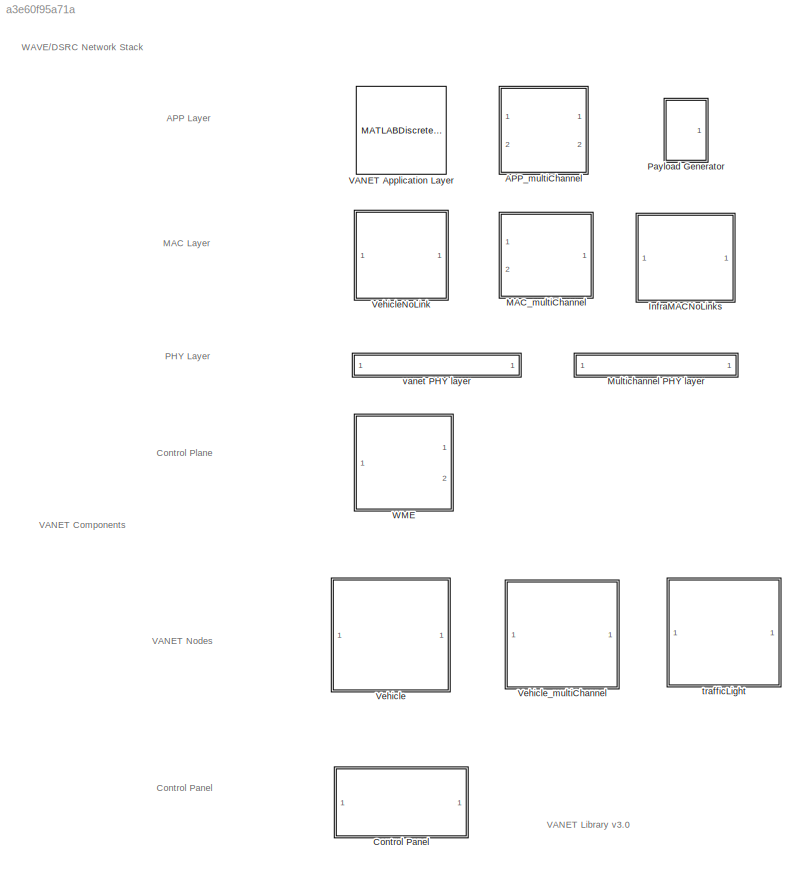
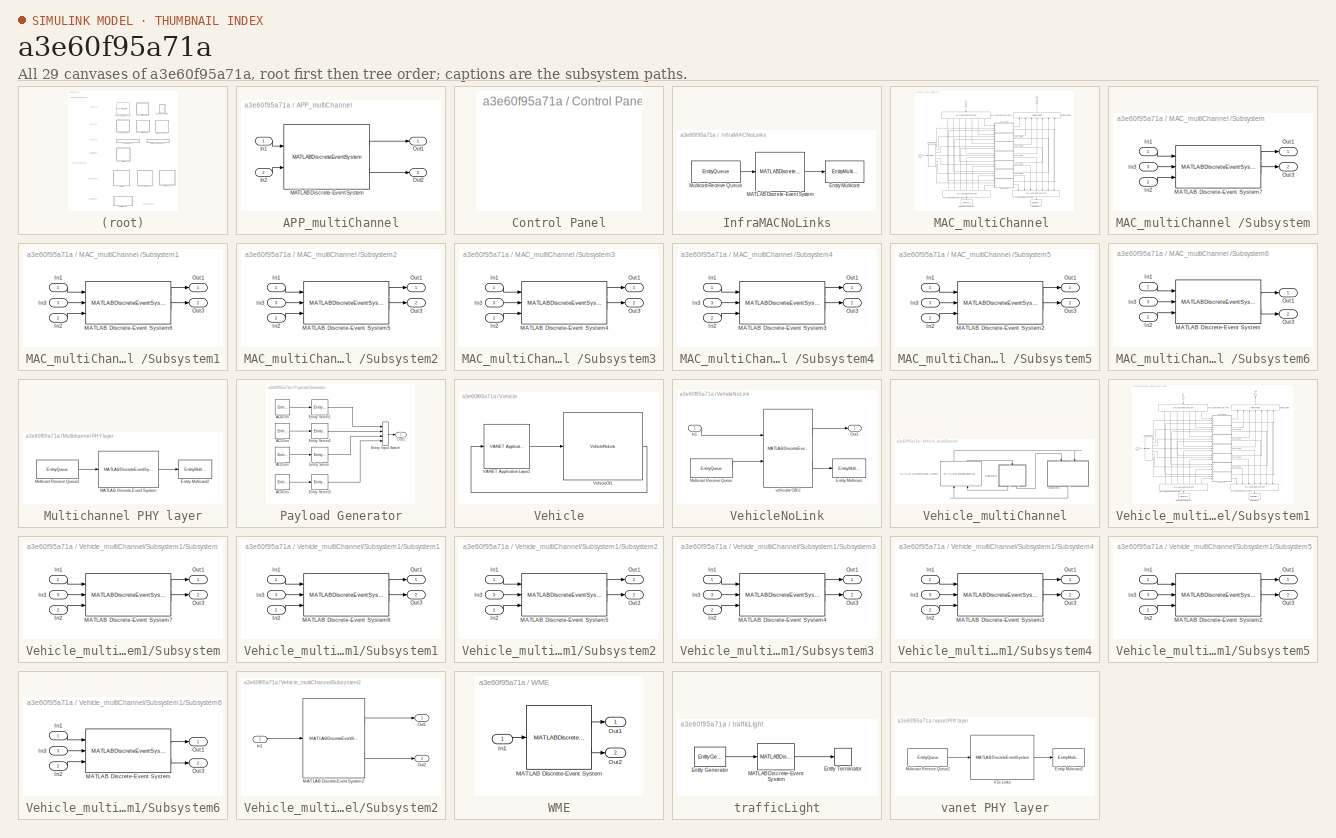
[diagram: thumbnail index - all 29 canvases of the model, root first then tree order]
MODEL slx_a3e60f95a71a
KIND library
CONFIG AbsTol = auto
CONFIG EnableMultiTasking = off
CONFIG FixedStep = auto
CONFIG MaxStep = auto
CONFIG MinStep = auto
CONFIG PreLoadFcn = vanet_init();
CONFIG RelTol = 1e-3
CONFIG SampleTimeConstraint = Unconstrained
CONFIG Solver = VariableStepAuto
CONFIG SolverName = VariableStepAuto
CONFIG StartFcn = vanet_init();
CONFIG StartTime = 0.0
CONFIG StopTime = 10.0
BLOCK [SubSystem] APP_multiChannel
  Ports = [2, 2]
  RequestExecContextInheritance = off
BLOCK [Inport] APP_multiChannel/In1
  IconDisplay = Port number
BLOCK [Inport] APP_multiChannel/In2
  IconDisplay = Port number
  Port = 2
BLOCK [MATLABDiscreteEventSystem] APP_multiChannel/MATLAB Discrete-Event System
  InputPortMessageModes = m,m
  MaskDisplay = disp('des_APP_mulChan_OBU');
  MaskType = des_APP_mulChan_OBU
  OutputPortMessageModes = m,m
  Ports = [2, 2]
  SimulateUsing = Code generation
  System = des_APP_mulChan_OBU
  initAcc = initAcc
  initLane = initLane
  initVelocity = initVelocity
  startPositionX = startPositionX
  startPositionY = startPositionY
  svcRole = 0
  vehicleID = vehicleID
BLOCK [Outport] APP_multiChannel/Out1
  IconDisplay = Port number
BLOCK [Outport] APP_multiChannel/Out2
  IconDisplay = Port number
  Port = 2
BLOCK [SubSystem] Control Panel
  Ports = []
  RequestExecContextInheritance = off
  StartFcn = fcn_initInfo('init');
BLOCK [SubSystem] InfraMACNoLinks
  Ports = []
  RequestExecContextInheritance = off
BLOCK [EntityMulticast] InfraMACNoLinks/Entity Multicast
  InputPortMessageModes = m
  MulticastTag = toPhy
BLOCK [MATLABDiscreteEventSystem] InfraMACNoLinks/MATLAB Discrete-Event System
  AIFSN_AC0 = 9
  AIFSN_AC1 = 6
  AIFSN_AC2 = 3
  AIFSN_AC3 = 2
  BSSID = 00
  InputPortMessageModes = m
  MaskDisplay = disp('des_MAC_RSU');
  MaskType = des_MAC_RSU
  OutputPortMessageModes = m
  Ports = [1, 1]
  Retry_MAX = 3
  SimulateUsing = Code generation
  System = des_MAC_RSU
  aCWmax = 1023
  aCWmin = 15
  propTime = 1
  rxAddr = 0
  sifs = 0.000032
  slottime = 0.000013
BLOCK [EntityQueue] InfraMACNoLinks/Multicast Receive Queue
  Capacity = inf
  EntityArrivalSource = Multicast
  MulticastTag = fromPhy
  OutputPortMap = o5
  OutputPortMessageModes = m
  Ports = [0, 1]
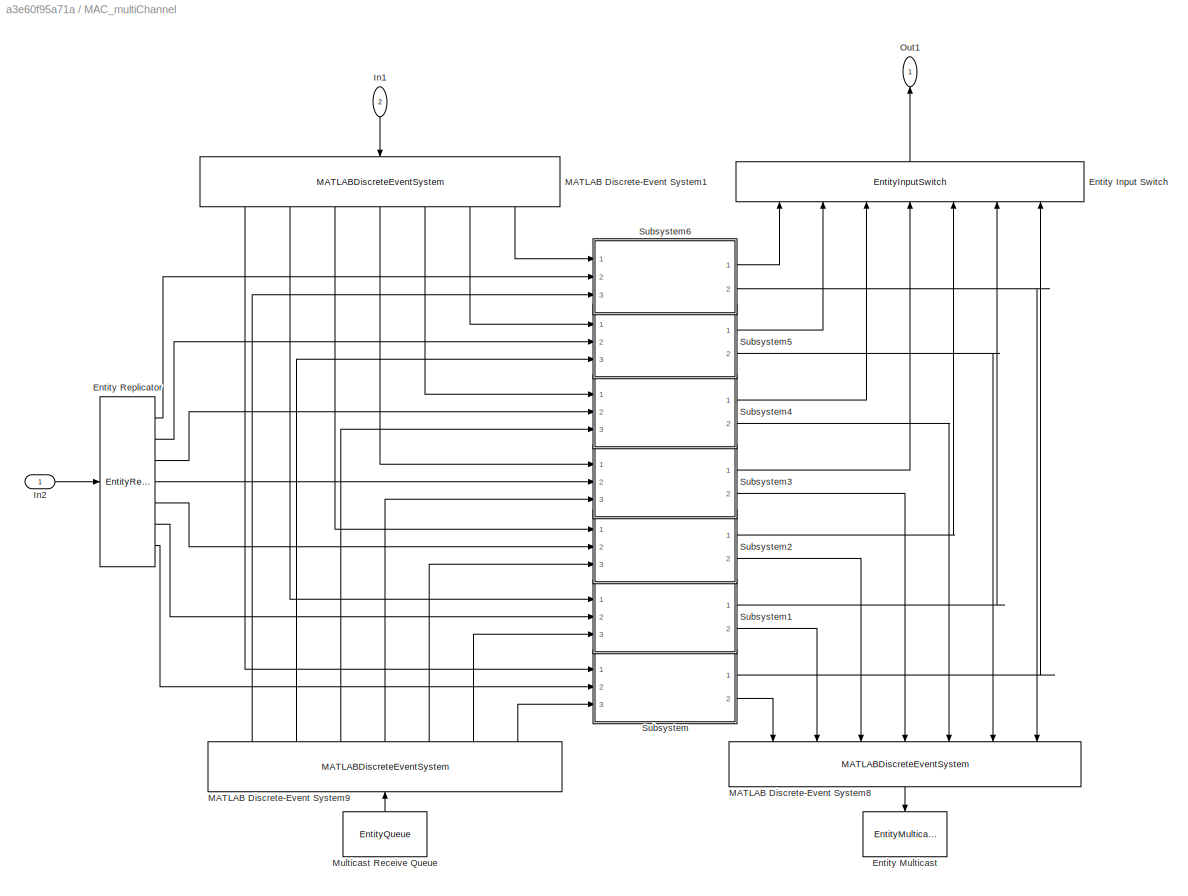
BLOCK [SubSystem] MAC_multiChannel 
  Ports = [2, 1]
  RequestExecContextInheritance = off
BLOCK [EntityInputSwitch] MAC_multiChannel /Entity Input Switch
  InputPortMap = u1,u2,u3,u4,u5,u6,u7
  InputPortMessageModes = m,m,m,m,m,m,m
  NumberInputPorts = 7
  OutputPortMap = o0
  OutputPortMessageModes = m
  Ports = [7, 1]
  SwitchingCriterion = Equiprobable
BLOCK [EntityMulticast] MAC_multiChannel /Entity Multicast
  InputPortMessageModes = m
  MulticastTag = toPhy
BLOCK [EntityReplicator] MAC_multiChannel /Entity Replicator
  InputPortMap = u0
  InputPortMessageModes = m
  NumberReplicas = 6
  OutputPortMap = o0,o1,o2,o3,o4,o5,o6
  OutputPortMessageModes = m,m,m,m,m,m,m
  Ports = [1, 7]
BLOCK [Inport] MAC_multiChannel /In1
  IconDisplay = Port number
  Port = 2
BLOCK [Inport] MAC_multiChannel /In2
  IconDisplay = Port number
BLOCK [MATLABDiscreteEventSystem] MAC_multiChannel /MATLAB Discrete-Event System1
  InputPortMessageModes = m
  MaskDisplay = disp('des_MAC_channelRouting');
  MaskType = des_MAC_channelRouting
  OutputPortMessageModes = m,m,m,m,m,m,m
  Ports = [1, 7]
  SimulateUsing = Code generation
  System = des_MAC_channelRouting
BLOCK [MATLABDiscreteEventSystem] MAC_multiChannel /MATLAB Discrete-Event System8
  InputPortMessageModes = m,m,m,m,m,m,m
  MaskDisplay = disp('des_MAC_channelSelect');
  MaskType = des_MAC_channelSelect
  OutputPortMessageModes = m
  Ports = [7, 1]
  SimulateUsing = Code generation
  System = des_MAC_channelSelect
BLOCK [MATLABDiscreteEventSystem] MAC_multiChannel /MATLAB Discrete-Event System9
  InputPortMessageModes = m
  MaskDisplay = disp('des_MAC_macSelect');
  MaskType = des_MAC_macSelect
  OutputPortMessageModes = m,m,m,m,m,m,m
  Ports = [1, 7]
  SimulateUsing = Code generation
  System = des_MAC_macSelect
BLOCK [EntityQueue] MAC_multiChannel /Multicast Receive Queue
  Capacity = inf
  EntityArrivalSource = Multicast
  MulticastTag = fromPhy
  OutputPortMap = o5
  OutputPortMessageModes = m
  Ports = [0, 1]
BLOCK [Outport] MAC_multiChannel /Out1
  IconDisplay = Port number
BLOCK [SubSystem] MAC_multiChannel /Subsystem
  Ports = [3, 2]
  RequestExecContextInheritance = off
BLOCK [Inport] MAC_multiChannel /Subsystem/In1
  IconDisplay = Port number
BLOCK [Inport] MAC_multiChannel /Subsystem/In2
  IconDisplay = Port number
  Port = 2
BLOCK [Inport] MAC_multiChannel /Subsystem/In3
  IconDisplay = Port number
  Port = 3
BLOCK [MATLABDiscreteEventSystem] MAC_multiChannel /Subsystem/MATLAB Discrete-Event System7
  AIFSN_AC0 = 9
  AIFSN_AC1 = 6
  AIFSN_AC2 = 3
  AIFSN_AC3 = 2
  ChanNum = chanNum
  InputPortMessageModes = m,m,m
  MaskDisplay = disp('des_MAC_mulChan_OBU');
  MaskType = des_MAC_mulChan_OBU
  OutputPortMessageModes = m,m
  Ports = [3, 2]
  Retry_MAX = 3
  SimulateUsing = Code generation
  System = des_MAC_mulChan_OBU
  aCWmax = 1023
  aCWmin = 15
  infraAddress = 0
  sifs = 32
  slottime = 13
  txAddr = txAddr
BLOCK [Outport] MAC_multiChannel /Subsystem/Out1
  IconDisplay = Port number
BLOCK [Outport] MAC_multiChannel /Subsystem/Out3
  IconDisplay = Port number
  Port = 2
BLOCK [SubSystem] MAC_multiChannel /Subsystem1
  Ports = [3, 2]
  RequestExecContextInheritance = off
BLOCK [Inport] MAC_multiChannel /Subsystem1/In1
  IconDisplay = Port number
BLOCK [Inport] MAC_multiChannel /Subsystem1/In2
  IconDisplay = Port number
  Port = 2
BLOCK [Inport] MAC_multiChannel /Subsystem1/In3
  IconDisplay = Port number
  Port = 3
BLOCK [MATLABDiscreteEventSystem] MAC_multiChannel /Subsystem1/MATLAB Discrete-Event System6
  AIFSN_AC0 = 9
  AIFSN_AC1 = 6
  AIFSN_AC2 = 3
  AIFSN_AC3 = 2
  ChanNum = chanNum
  InputPortMessageModes = m,m,m
  MaskDisplay = disp('des_MAC_mulChan_OBU');
  MaskType = des_MAC_mulChan_OBU
  OutputPortMessageModes = m,m
  Ports = [3, 2]
  Retry_MAX = 3
  SimulateUsing = Code generation
  System = des_MAC_mulChan_OBU
  aCWmax = 1023
  aCWmin = 15
  infraAddress = 0
  sifs = 32
  slottime = 13
  txAddr = txAddr
BLOCK [Outport] MAC_multiChannel /Subsystem1/Out1
  IconDisplay = Port number
BLOCK [Outport] MAC_multiChannel /Subsystem1/Out3
  IconDisplay = Port number
  Port = 2
BLOCK [SubSystem] MAC_multiChannel /Subsystem2
  Ports = [3, 2]
  RequestExecContextInheritance = off
BLOCK [Inport] MAC_multiChannel /Subsystem2/In1
  IconDisplay = Port number
BLOCK [Inport] MAC_multiChannel /Subsystem2/In2
  IconDisplay = Port number
  Port = 2
BLOCK [Inport] MAC_multiChannel /Subsystem2/In3
  IconDisplay = Port number
  Port = 3
BLOCK [MATLABDiscreteEventSystem] MAC_multiChannel /Subsystem2/MATLAB Discrete-Event System5
  AIFSN_AC0 = 9
  AIFSN_AC1 = 6
  AIFSN_AC2 = 3
  AIFSN_AC3 = 2
  ChanNum = chanNum
  InputPortMessageModes = m,m,m
  MaskDisplay = disp('des_MAC_mulChan_OBU');
  MaskType = des_MAC_mulChan_OBU
  OutputPortMessageModes = m,m
  Ports = [3, 2]
  Retry_MAX = 3
  SimulateUsing = Code generation
  System = des_MAC_mulChan_OBU
  aCWmax = 1023
  aCWmin = 15
  infraAddress = 0
  sifs = 32
  slottime = 13
  txAddr = txAddr
BLOCK [Outport] MAC_multiChannel /Subsystem2/Out1
  IconDisplay = Port number
BLOCK [Outport] MAC_multiChannel /Subsystem2/Out3
  IconDisplay = Port number
  Port = 2
BLOCK [SubSystem] MAC_multiChannel /Subsystem3
  Ports = [3, 2]
  RequestExecContextInheritance = off
BLOCK [Inport] MAC_multiChannel /Subsystem3/In1
  IconDisplay = Port number
BLOCK [Inport] MAC_multiChannel /Subsystem3/In2
  IconDisplay = Port number
  Port = 2
BLOCK [Inport] MAC_multiChannel /Subsystem3/In3
  IconDisplay = Port number
  Port = 3
BLOCK [MATLABDiscreteEventSystem] MAC_multiChannel /Subsystem3/MATLAB Discrete-Event System4
  AIFSN_AC0 = 9
  AIFSN_AC1 = 6
  AIFSN_AC2 = 3
  AIFSN_AC3 = 2
  ChanNum = chanNum
  InputPortMessageModes = m,m,m
  MaskDisplay = disp('des_MAC_mulChan_OBU');
  MaskType = des_MAC_mulChan_OBU
  OutputPortMessageModes = m,m
  Ports = [3, 2]
  Retry_MAX = 3
  SimulateUsing = Code generation
  System = des_MAC_mulChan_OBU
  aCWmax = 1023
  aCWmin = 15
  infraAddress = 0
  sifs = 32
  slottime = 13
  txAddr = txAddr
BLOCK [Outport] MAC_multiChannel /Subsystem3/Out1
  IconDisplay = Port number
BLOCK [Outport] MAC_multiChannel /Subsystem3/Out3
  IconDisplay = Port number
  Port = 2
BLOCK [SubSystem] MAC_multiChannel /Subsystem4
  Ports = [3, 2]
  RequestExecContextInheritance = off
BLOCK [Inport] MAC_multiChannel /Subsystem4/In1
  IconDisplay = Port number
BLOCK [Inport] MAC_multiChannel /Subsystem4/In2
  IconDisplay = Port number
  Port = 2
BLOCK [Inport] MAC_multiChannel /Subsystem4/In3
  IconDisplay = Port number
  Port = 3
BLOCK [MATLABDiscreteEventSystem] MAC_multiChannel /Subsystem4/MATLAB Discrete-Event System3
  AIFSN_AC0 = 9
  AIFSN_AC1 = 6
  AIFSN_AC2 = 3
  AIFSN_AC3 = 2
  ChanNum = chanNum
  InputPortMessageModes = m,m,m
  MaskDisplay = disp('des_MAC_mulChan_OBU');
  MaskType = des_MAC_mulChan_OBU
  OutputPortMessageModes = m,m
  Ports = [3, 2]
  Retry_MAX = 3
  SimulateUsing = Code generation
  System = des_MAC_mulChan_OBU
  aCWmax = 1023
  aCWmin = 15
  infraAddress = 0
  sifs = 32
  slottime = 13
  txAddr = txAddr
BLOCK [Outport] MAC_multiChannel /Subsystem4/Out1
  IconDisplay = Port number
BLOCK [Outport] MAC_multiChannel /Subsystem4/Out3
  IconDisplay = Port number
  Port = 2
BLOCK [SubSystem] MAC_multiChannel /Subsystem5
  Ports = [3, 2]
  RequestExecContextInheritance = off
BLOCK [Inport] MAC_multiChannel /Subsystem5/In1
  IconDisplay = Port number
BLOCK [Inport] MAC_multiChannel /Subsystem5/In2
  IconDisplay = Port number
  Port = 2
BLOCK [Inport] MAC_multiChannel /Subsystem5/In3
  IconDisplay = Port number
  Port = 3
BLOCK [MATLABDiscreteEventSystem] MAC_multiChannel /Subsystem5/MATLAB Discrete-Event System2
  AIFSN_AC0 = 9
  AIFSN_AC1 = 6
  AIFSN_AC2 = 3
  AIFSN_AC3 = 2
  ChanNum = chanNum
  InputPortMessageModes = m,m,m
  MaskDisplay = disp('des_MAC_mulChan_OBU');
  MaskType = des_MAC_mulChan_OBU
  OutputPortMessageModes = m,m
  Ports = [3, 2]
  Retry_MAX = 3
  SimulateUsing = Code generation
  System = des_MAC_mulChan_OBU
  aCWmax = 1023
  aCWmin = 15
  infraAddress = 0
  sifs = 32
  slottime = 13
  txAddr = txAddr
BLOCK [Outport] MAC_multiChannel /Subsystem5/Out1
  IconDisplay = Port number
BLOCK [Outport] MAC_multiChannel /Subsystem5/Out3
  IconDisplay = Port number
  Port = 2
BLOCK [SubSystem] MAC_multiChannel /Subsystem6
  Ports = [3, 2]
  RequestExecContextInheritance = off
BLOCK [Inport] MAC_multiChannel /Subsystem6/In1
  IconDisplay = Port number
BLOCK [Inport] MAC_multiChannel /Subsystem6/In2
  IconDisplay = Port number
  Port = 2
BLOCK [Inport] MAC_multiChannel /Subsystem6/In3
  IconDisplay = Port number
  Port = 3
BLOCK [MATLABDiscreteEventSystem] MAC_multiChannel /Subsystem6/MATLAB Discrete-Event System
  AIFSN_AC0 = 9
  AIFSN_AC1 = 6
  AIFSN_AC2 = 3
  AIFSN_AC3 = 2
  ChanNum = chanNum
  InputPortMessageModes = m,m,m
  MaskDisplay = disp('des_MAC_mulChan_OBU');
  MaskType = des_MAC_mulChan_OBU
  OutputPortMessageModes = m,m
  Ports = [3, 2]
  Retry_MAX = 3
  SimulateUsing = Code generation
  System = des_MAC_mulChan_OBU
  aCWmax = 1023
  aCWmin = 15
  infraAddress = 0
  sifs = 32
  slottime = 13
  txAddr = txAddr
BLOCK [Outport] MAC_multiChannel /Subsystem6/Out1
  IconDisplay = Port number
BLOCK [Outport] MAC_multiChannel /Subsystem6/Out3
  IconDisplay = Port number
  Port = 2
BLOCK [SubSystem] Multichannel PHY layer
  Ports = []
  RequestExecContextInheritance = off
BLOCK [EntityMulticast] Multichannel PHY layer/Entity Multicast2
  InputPortMessageModes = m
  MulticastTag = fromPhy
BLOCK [MATLABDiscreteEventSystem] Multichannel PHY layer/MATLAB Discrete-Event System
  InputPortMessageModes = m
  MaskDisplay = disp('des_PHY_mulChan_links');
  MaskType = des_PHY_mulChan_links
  OutputPortMessageModes = m
  Ports = [1, 1]
  SimulateUsing = Code generation
  System = des_PHY_mulChan_links
BLOCK [EntityQueue] Multichannel PHY layer/Multicast Receive Queue2
  Capacity = inf
  EntityArrivalSource = Multicast
  MulticastTag = toPhy
  OutputPortMap = o5
  OutputPortMessageModes = m
  Ports = [0, 1]
BLOCK [SubSystem] Payload Generator
  Ports = [0, 1]
  RequestExecContextInheritance = off
BLOCK [EntityGenerator] Payload Generator/AC0Gen
  EntityType = Bus object
  EntityTypeName = Payload
  GenerateAction = coder.extrinsic('evalin')\npayloadlength=evalin('base','payloadLength');\nentity.wsmp=ones(1,payloadlength);\n% rng('shuffle');\nentity.priority=1;
  GenerateEntityAtSimulationStart = off
  IntergenerationTimeAction = % y=getParams();\ndt=ac0Rate;
  OutputPortMap = o3
  OutputPortMessageModes = m
  Period = 0.1
  Ports = [0, 1]
  TimeSource = MATLAB action
BLOCK [EntityGenerator] Payload Generator/AC1Gen
  EntityType = Bus object
  EntityTypeName = Payload
  GenerateAction = coder.extrinsic('evalin')\npayloadlength=evalin('base','payloadLength');\nentity.wsmp=ones(1,payloadlength);\n% rng('shuffle');\nentity.priority=3;
  GenerateEntityAtSimulationStart = off
  IntergenerationTimeAction = % y=getParams();\ndt=ac1Rate;
  OutputPortMap = o3
  OutputPortMessageModes = m
  Period = 0.1
  Ports = [0, 1]
  TimeSource = MATLAB action
BLOCK [EntityGenerator] Payload Generator/AC2Gen
  EntityType = Bus object
  EntityTypeName = Payload
  GenerateAction = coder.extrinsic('evalin')\npayloadlength=evalin('base','payloadLength');\nentity.wsmp=ones(1,payloadlength);\nentity.VehicleID=txAddr;\n% rng('shuffle');\nentity.priority=5;
  GenerateEntityAtSimulationStart = off
  IntergenerationTimeAction = % y=getParams();\ndt=ac2Rate;
  OutputPortMap = o3
  OutputPortMessageModes = m
  Period = 0.1
  Ports = [0, 1]
  TimeSource = MATLAB action
BLOCK [EntityGenerator] Payload Generator/AC3Gen
  EntityType = Bus object
  EntityTypeName = Payload
  GenerateAction = coder.extrinsic('evalin')\npayloadLength=evalin('base','payloadLength');\nentity.wsmp=ones(1,payloadLength);\n\n% entity.wsmp=msg2wsmp(txAddr,entity.wsmp,1);\n% rng('shuffle');\nentity.priority=7;
  GenerateEntityAtSimulationStart = off
  IntergenerationTimeAction = % dt=exponentialArrivalTime();\ndt=ac3Rate;
  OutputPortMap = o3
  OutputPortMessageModes = m
  Period = 0.1
  Ports = [0, 1]
  TimeSource = MATLAB action
BLOCK [EntityInputSwitch] Payload Generator/Entity Input Switch
  InputPortMap = u1,u2,u3,u4
  InputPortMessageModes = m,m,m,m
  NumberInputPorts = 4
  OutputPortMap = o0
  OutputPortMessageModes = m
  Ports = [4, 1]
BLOCK [EntityServer] Payload Generator/Entity Server
  Capacity = 1
  InputPortMap = u2
  InputPortMessageModes = m
  OutputPortMap = o9
  OutputPortMessageModes = m
  Ports = [1, 1]
  ServiceTimeAction = dt = 0.000002*txAddr;
  ServiceTimeSource = MATLAB action
BLOCK [EntityServer] Payload Generator/Entity Server1
  Capacity = 1
  InputPortMap = u2
  InputPortMessageModes = m
  OutputPortMap = o9
  OutputPortMessageModes = m
  Ports = [1, 1]
  ServiceTimeAction = dt = 0.000004*txAddr;
  ServiceTimeSource = MATLAB action
BLOCK [EntityServer] Payload Generator/Entity Server2
  Capacity = 1
  InputPortMap = u2
  InputPortMessageModes = m
  OutputPortMap = o9
  OutputPortMessageModes = m
  Ports = [1, 1]
  ServiceTimeAction = dt = 0.000003*txAddr;
  ServiceTimeSource = MATLAB action
BLOCK [EntityServer] Payload Generator/Entity Server3
  Capacity = 1
  InputPortMap = u2
  InputPortMessageModes = m
  OutputPortMap = o9
  OutputPortMessageModes = m
  Ports = [1, 1]
  ServiceTimeAction = dt = 0.000001*txAddr;
  ServiceTimeSource = MATLAB action
BLOCK [Outport] Payload Generator/Out1
  IconDisplay = Port number
BLOCK [MATLABDiscreteEventSystem] VANET Application Layer
  InputPortMessageModes = m
  MaskDisplay = disp('des_APP_OBU');
  MaskType = des_APP_OBU
  OutputPortMessageModes = m
  Ports = [1, 1]
  SimulateUsing = Code generation
  System = des_APP_OBU
  initAcc = 10
  initLane = 1
  initVelocity = 10
  startPositionX = 10
  startPositionY = 0
  vehicleID = 1
BLOCK [SubSystem] Vehicle
  Ports = []
  RequestExecContextInheritance = off
BLOCK [Reference] Vehicle/VANET Application Layer1  REF=$bdroot/VANET Application Layer
  Ports = [1, 1]
  SourceBlock = $bdroot/VANET Application Layer
  SourceType = des_APP_OBU
BLOCK [Reference] Vehicle/VehicleOI1  REF=$bdroot/VehicleNoLink
  Ports = [1, 1]
  SourceBlock = $bdroot/VehicleNoLink
BLOCK [SubSystem] VehicleNoLink
  Ports = [1, 1]
  RequestExecContextInheritance = off
BLOCK [EntityMulticast] VehicleNoLink/Entity Multicast
  InputPortMessageModes = m
  MulticastTag = toPhy
BLOCK [Inport] VehicleNoLink/In1
  IconDisplay = Port number
BLOCK [EntityQueue] VehicleNoLink/Multicast Receive Queue
  Capacity = inf
  EntityArrivalSource = Multicast
  MulticastTag = fromPhy
  OutputPortMap = o5
  OutputPortMessageModes = m
  Ports = [0, 1]
BLOCK [Outport] VehicleNoLink/Out1
  IconDisplay = Port number
BLOCK [MATLABDiscreteEventSystem] VehicleNoLink/vehicular OBU
  AIFSN_AC0 = AC0
  AIFSN_AC1 = AC1
  AIFSN_AC2 = AC2
  AIFSN_AC3 = AC3
  InputPortMessageModes = m,m
  MaskDisplay = disp('des_MAC_OBU');
  MaskType = des_MAC_OBU
  OutputPortMessageModes = m,m
  Ports = [2, 2]
  Retry_MAX = Retry_MAX
  SimulateUsing = Code generation
  System = des_MAC_OBU
  aCWmax = aCWmax
  aCWmin = aCWmin
  infraAddress = infraAddress
  sifs = SIFS
  slottime = slottime
  txAddr = txAddr
BLOCK [SubSystem] Vehicle_multiChannel
  Ports = []
  RequestExecContextInheritance = off
BLOCK [MATLABDiscreteEventSystem] Vehicle_multiChannel/MATLAB Discrete-Event System1
  InputPortMessageModes = m,m
  MaskDisplay = disp('des_APP_mulChan_OBU');
  MaskType = des_APP_mulChan_OBU
  OutputPortMessageModes = m,m
  Ports = [2, 2]
  SimulateUsing = Code generation
  System = des_APP_mulChan_OBU
  initAcc = startAcc
  initLane = initLane
  initVelocity = startSpd
  startPositionX = startPosX
  startPositionY = startPosY
  svcRole = 0
  vehicleID = vehicleID
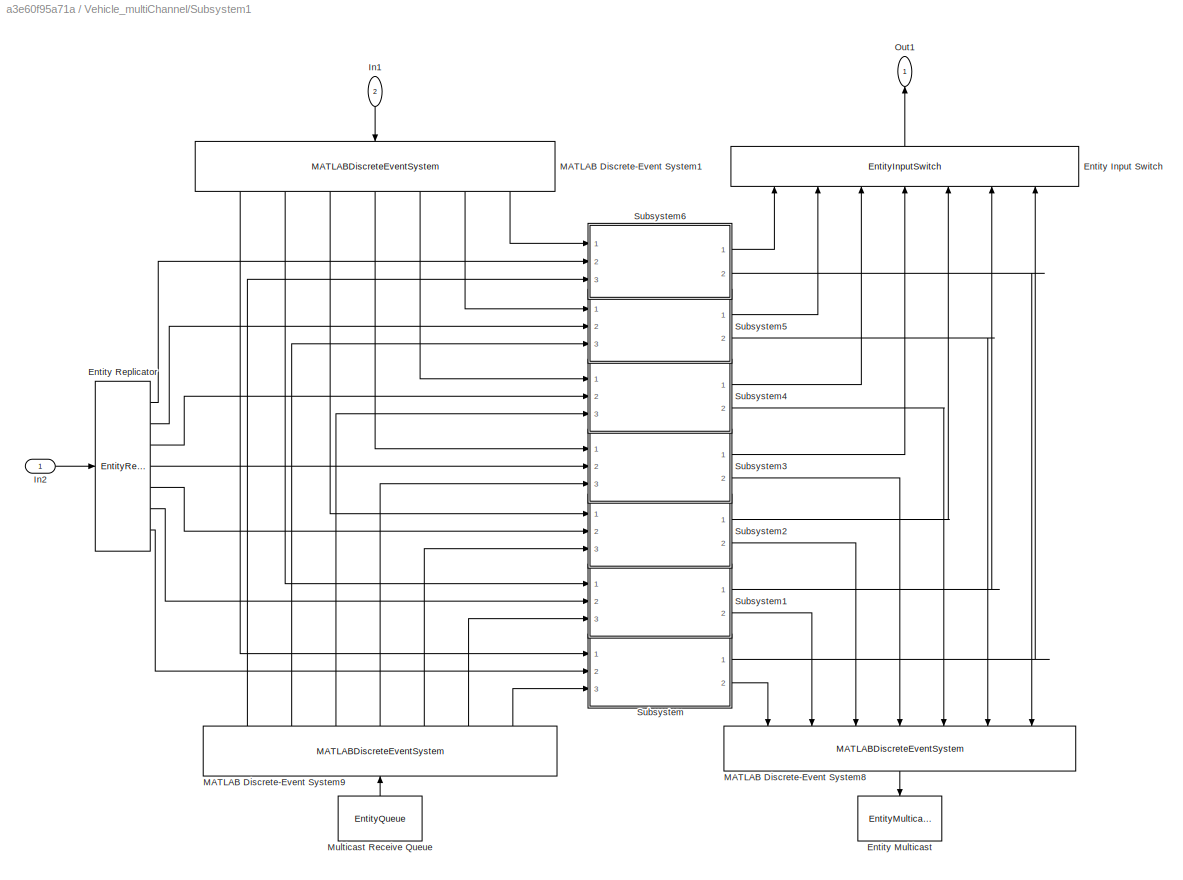
BLOCK [SubSystem] Vehicle_multiChannel/Subsystem1
  Ports = [2, 1]
  RequestExecContextInheritance = off
BLOCK [EntityInputSwitch] Vehicle_multiChannel/Subsystem1/Entity Input Switch
  InputPortMap = u1,u2,u3,u4,u5,u6,u7
  InputPortMessageModes = m,m,m,m,m,m,m
  NumberInputPorts = 7
  OutputPortMap = o0
  OutputPortMessageModes = m
  Ports = [7, 1]
  SwitchingCriterion = Equiprobable
BLOCK [EntityMulticast] Vehicle_multiChannel/Subsystem1/Entity Multicast
  InputPortMessageModes = m
  MulticastTag = toPhy
BLOCK [EntityReplicator] Vehicle_multiChannel/Subsystem1/Entity Replicator
  InputPortMap = u0
  InputPortMessageModes = m
  NumberReplicas = 6
  OutputPortMap = o0,o1,o2,o3,o4,o5,o6
  OutputPortMessageModes = m,m,m,m,m,m,m
  Ports = [1, 7]
BLOCK [Inport] Vehicle_multiChannel/Subsystem1/In1
  IconDisplay = Port number
  Port = 2
BLOCK [Inport] Vehicle_multiChannel/Subsystem1/In2
  IconDisplay = Port number
BLOCK [MATLABDiscreteEventSystem] Vehicle_multiChannel/Subsystem1/MATLAB Discrete-Event System1
  InputPortMessageModes = m
  MaskDisplay = disp('des_MAC_channelRouting');
  MaskType = des_MAC_channelRouting
  OutputPortMessageModes = m,m,m,m,m,m,m
  Ports = [1, 7]
  SimulateUsing = Code generation
  System = des_MAC_channelRouting
BLOCK [MATLABDiscreteEventSystem] Vehicle_multiChannel/Subsystem1/MATLAB Discrete-Event System8
  InputPortMessageModes = m,m,m,m,m,m,m
  MaskDisplay = disp('des_MAC_channelSelect');
  MaskType = des_MAC_channelSelect
  OutputPortMessageModes = m
  Ports = [7, 1]
  SimulateUsing = Code generation
  System = des_MAC_channelSelect
BLOCK [MATLABDiscreteEventSystem] Vehicle_multiChannel/Subsystem1/MATLAB Discrete-Event System9
  InputPortMessageModes = m
  MaskDisplay = disp('des_MAC_macSelect');
  MaskType = des_MAC_macSelect
  OutputPortMessageModes = m,m,m,m,m,m,m
  Ports = [1, 7]
  SimulateUsing = Code generation
  System = des_MAC_macSelect
BLOCK [EntityQueue] Vehicle_multiChannel/Subsystem1/Multicast Receive Queue
  Capacity = inf
  EntityArrivalSource = Multicast
  MulticastTag = fromPhy
  OutputPortMap = o5
  OutputPortMessageModes = m
  Ports = [0, 1]
BLOCK [Outport] Vehicle_multiChannel/Subsystem1/Out1
  IconDisplay = Port number
BLOCK [SubSystem] Vehicle_multiChannel/Subsystem1/Subsystem
  Ports = [3, 2]
  RequestExecContextInheritance = off
BLOCK [Inport] Vehicle_multiChannel/Subsystem1/Subsystem/In1
  IconDisplay = Port number
BLOCK [Inport] Vehicle_multiChannel/Subsystem1/Subsystem/In2
  IconDisplay = Port number
  Port = 2
BLOCK [Inport] Vehicle_multiChannel/Subsystem1/Subsystem/In3
  IconDisplay = Port number
  Port = 3
BLOCK [MATLABDiscreteEventSystem] Vehicle_multiChannel/Subsystem1/Subsystem/MATLAB Discrete-Event System7
  AIFSN_AC0 = 9
  AIFSN_AC1 = 6
  AIFSN_AC2 = 3
  AIFSN_AC3 = 2
  ChanNum = chanNum
  InputPortMessageModes = m,m,m
  MaskDisplay = disp('des_MAC_mulChan_OBU');
  MaskType = des_MAC_mulChan_OBU
  OutputPortMessageModes = m,m
  Ports = [3, 2]
  Retry_MAX = 3
  SimulateUsing = Code generation
  System = des_MAC_mulChan_OBU
  aCWmax = 1023
  aCWmin = 15
  infraAddress = 0
  sifs = 32
  slottime = 13
  txAddr = txAddr
BLOCK [Outport] Vehicle_multiChannel/Subsystem1/Subsystem/Out1
  IconDisplay = Port number
BLOCK [Outport] Vehicle_multiChannel/Subsystem1/Subsystem/Out3
  IconDisplay = Port number
  Port = 2
BLOCK [SubSystem] Vehicle_multiChannel/Subsystem1/Subsystem1
  Ports = [3, 2]
  RequestExecContextInheritance = off
BLOCK [Inport] Vehicle_multiChannel/Subsystem1/Subsystem1/In1
  IconDisplay = Port number
BLOCK [Inport] Vehicle_multiChannel/Subsystem1/Subsystem1/In2
  IconDisplay = Port number
  Port = 2
BLOCK [Inport] Vehicle_multiChannel/Subsystem1/Subsystem1/In3
  IconDisplay = Port number
  Port = 3
BLOCK [MATLABDiscreteEventSystem] Vehicle_multiChannel/Subsystem1/Subsystem1/MATLAB Discrete-Event System6
  AIFSN_AC0 = 9
  AIFSN_AC1 = 6
  AIFSN_AC2 = 3
  AIFSN_AC3 = 2
  ChanNum = chanNum
  InputPortMessageModes = m,m,m
  MaskDisplay = disp('des_MAC_mulChan_OBU');
  MaskType = des_MAC_mulChan_OBU
  OutputPortMessageModes = m,m
  Ports = [3, 2]
  Retry_MAX = 3
  SimulateUsing = Code generation
  System = des_MAC_mulChan_OBU
  aCWmax = 1023
  aCWmin = 15
  infraAddress = 0
  sifs = 32
  slottime = 13
  txAddr = txAddr
BLOCK [Outport] Vehicle_multiChannel/Subsystem1/Subsystem1/Out1
  IconDisplay = Port number
BLOCK [Outport] Vehicle_multiChannel/Subsystem1/Subsystem1/Out3
  IconDisplay = Port number
  Port = 2
BLOCK [SubSystem] Vehicle_multiChannel/Subsystem1/Subsystem2
  Ports = [3, 2]
  RequestExecContextInheritance = off
BLOCK [Inport] Vehicle_multiChannel/Subsystem1/Subsystem2/In1
  IconDisplay = Port number
BLOCK [Inport] Vehicle_multiChannel/Subsystem1/Subsystem2/In2
  IconDisplay = Port number
  Port = 2
BLOCK [Inport] Vehicle_multiChannel/Subsystem1/Subsystem2/In3
  IconDisplay = Port number
  Port = 3
BLOCK [MATLABDiscreteEventSystem] Vehicle_multiChannel/Subsystem1/Subsystem2/MATLAB Discrete-Event System5
  AIFSN_AC0 = 9
  AIFSN_AC1 = 6
  AIFSN_AC2 = 3
  AIFSN_AC3 = 2
  ChanNum = chanNum
  InputPortMessageModes = m,m,m
  MaskDisplay = disp('des_MAC_mulChan_OBU');
  MaskType = des_MAC_mulChan_OBU
  OutputPortMessageModes = m,m
  Ports = [3, 2]
  Retry_MAX = 3
  SimulateUsing = Code generation
  System = des_MAC_mulChan_OBU
  aCWmax = 1023
  aCWmin = 15
  infraAddress = 0
  sifs = 32
  slottime = 13
  txAddr = txAddr
BLOCK [Outport] Vehicle_multiChannel/Subsystem1/Subsystem2/Out1
  IconDisplay = Port number
BLOCK [Outport] Vehicle_multiChannel/Subsystem1/Subsystem2/Out3
  IconDisplay = Port number
  Port = 2
BLOCK [SubSystem] Vehicle_multiChannel/Subsystem1/Subsystem3
  Ports = [3, 2]
  RequestExecContextInheritance = off
BLOCK [Inport] Vehicle_multiChannel/Subsystem1/Subsystem3/In1
  IconDisplay = Port number
BLOCK [Inport] Vehicle_multiChannel/Subsystem1/Subsystem3/In2
  IconDisplay = Port number
  Port = 2
BLOCK [Inport] Vehicle_multiChannel/Subsystem1/Subsystem3/In3
  IconDisplay = Port number
  Port = 3
BLOCK [MATLABDiscreteEventSystem] Vehicle_multiChannel/Subsystem1/Subsystem3/MATLAB Discrete-Event System4
  AIFSN_AC0 = 9
  AIFSN_AC1 = 6
  AIFSN_AC2 = 3
  AIFSN_AC3 = 2
  ChanNum = chanNum
  InputPortMessageModes = m,m,m
  MaskDisplay = disp('des_MAC_mulChan_OBU');
  MaskType = des_MAC_mulChan_OBU
  OutputPortMessageModes = m,m
  Ports = [3, 2]
  Retry_MAX = 3
  SimulateUsing = Code generation
  System = des_MAC_mulChan_OBU
  aCWmax = 1023
  aCWmin = 15
  infraAddress = 0
  sifs = 32
  slottime = 13
  txAddr = txAddr
BLOCK [Outport] Vehicle_multiChannel/Subsystem1/Subsystem3/Out1
  IconDisplay = Port number
BLOCK [Outport] Vehicle_multiChannel/Subsystem1/Subsystem3/Out3
  IconDisplay = Port number
  Port = 2
BLOCK [SubSystem] Vehicle_multiChannel/Subsystem1/Subsystem4
  Ports = [3, 2]
  RequestExecContextInheritance = off
BLOCK [Inport] Vehicle_multiChannel/Subsystem1/Subsystem4/In1
  IconDisplay = Port number
BLOCK [Inport] Vehicle_multiChannel/Subsystem1/Subsystem4/In2
  IconDisplay = Port number
  Port = 2
BLOCK [Inport] Vehicle_multiChannel/Subsystem1/Subsystem4/In3
  IconDisplay = Port number
  Port = 3
BLOCK [MATLABDiscreteEventSystem] Vehicle_multiChannel/Subsystem1/Subsystem4/MATLAB Discrete-Event System3
  AIFSN_AC0 = 9
  AIFSN_AC1 = 6
  AIFSN_AC2 = 3
  AIFSN_AC3 = 2
  ChanNum = chanNum
  InputPortMessageModes = m,m,m
  MaskDisplay = disp('des_MAC_mulChan_OBU');
  MaskType = des_MAC_mulChan_OBU
  OutputPortMessageModes = m,m
  Ports = [3, 2]
  Retry_MAX = 3
  SimulateUsing = Code generation
  System = des_MAC_mulChan_OBU
  aCWmax = 1023
  aCWmin = 15
  infraAddress = 0
  sifs = 32
  slottime = 13
  txAddr = txAddr
BLOCK [Outport] Vehicle_multiChannel/Subsystem1/Subsystem4/Out1
  IconDisplay = Port number
BLOCK [Outport] Vehicle_multiChannel/Subsystem1/Subsystem4/Out3
  IconDisplay = Port number
  Port = 2
BLOCK [SubSystem] Vehicle_multiChannel/Subsystem1/Subsystem5
  Ports = [3, 2]
  RequestExecContextInheritance = off
BLOCK [Inport] Vehicle_multiChannel/Subsystem1/Subsystem5/In1
  IconDisplay = Port number
BLOCK [Inport] Vehicle_multiChannel/Subsystem1/Subsystem5/In2
  IconDisplay = Port number
  Port = 2
BLOCK [Inport] Vehicle_multiChannel/Subsystem1/Subsystem5/In3
  IconDisplay = Port number
  Port = 3
BLOCK [MATLABDiscreteEventSystem] Vehicle_multiChannel/Subsystem1/Subsystem5/MATLAB Discrete-Event System2
  AIFSN_AC0 = 9
  AIFSN_AC1 = 6
  AIFSN_AC2 = 3
  AIFSN_AC3 = 2
  ChanNum = chanNum
  InputPortMessageModes = m,m,m
  MaskDisplay = disp('des_MAC_mulChan_OBU');
  MaskType = des_MAC_mulChan_OBU
  OutputPortMessageModes = m,m
  Ports = [3, 2]
  Retry_MAX = 3
  SimulateUsing = Code generation
  System = des_MAC_mulChan_OBU
  aCWmax = 1023
  aCWmin = 15
  infraAddress = 0
  sifs = 32
  slottime = 13
  txAddr = txAddr
BLOCK [Outport] Vehicle_multiChannel/Subsystem1/Subsystem5/Out1
  IconDisplay = Port number
BLOCK [Outport] Vehicle_multiChannel/Subsystem1/Subsystem5/Out3
  IconDisplay = Port number
  Port = 2
BLOCK [SubSystem] Vehicle_multiChannel/Subsystem1/Subsystem6
  Ports = [3, 2]
  RequestExecContextInheritance = off
BLOCK [Inport] Vehicle_multiChannel/Subsystem1/Subsystem6/In1
  IconDisplay = Port number
BLOCK [Inport] Vehicle_multiChannel/Subsystem1/Subsystem6/In2
  IconDisplay = Port number
  Port = 2
BLOCK [Inport] Vehicle_multiChannel/Subsystem1/Subsystem6/In3
  IconDisplay = Port number
  Port = 3
BLOCK [MATLABDiscreteEventSystem] Vehicle_multiChannel/Subsystem1/Subsystem6/MATLAB Discrete-Event System
  AIFSN_AC0 = 9
  AIFSN_AC1 = 6
  AIFSN_AC2 = 3
  AIFSN_AC3 = 2
  ChanNum = chanNum
  InputPortMessageModes = m,m,m
  MaskDisplay = disp('des_MAC_mulChan_OBU');
  MaskType = des_MAC_mulChan_OBU
  OutputPortMessageModes = m,m
  Ports = [3, 2]
  Retry_MAX = 3
  SimulateUsing = Code generation
  System = des_MAC_mulChan_OBU
  aCWmax = 1023
  aCWmin = 15
  infraAddress = 0
  sifs = 32
  slottime = 13
  txAddr = txAddr
BLOCK [Outport] Vehicle_multiChannel/Subsystem1/Subsystem6/Out1
  IconDisplay = Port number
BLOCK [Outport] Vehicle_multiChannel/Subsystem1/Subsystem6/Out3
  IconDisplay = Port number
  Port = 2
BLOCK [SubSystem] Vehicle_multiChannel/Subsystem2
  Ports = [1, 2]
  RequestExecContextInheritance = off
BLOCK [Inport] Vehicle_multiChannel/Subsystem2/In1
  IconDisplay = Port number
BLOCK [MATLABDiscreteEventSystem] Vehicle_multiChannel/Subsystem2/MATLAB Discrete-Event System2
  InputPortMessageModes = m
  MaskDisplay = disp('des_APP_WME');
  MaskType = des_APP_WME
  OutputPortMessageModes = m,m
  Ports = [1, 2]
  SimulateUsing = Code generation
  System = des_APP_WME
  vehicleID = vehicleID
BLOCK [Outport] Vehicle_multiChannel/Subsystem2/Out1
  IconDisplay = Port number
BLOCK [Outport] Vehicle_multiChannel/Subsystem2/Out2
  IconDisplay = Port number
  Port = 2
BLOCK [SubSystem] WME
  Ports = [1, 2]
  RequestExecContextInheritance = off
BLOCK [Inport] WME/In1
  IconDisplay = Port number
BLOCK [MATLABDiscreteEventSystem] WME/MATLAB Discrete-Event System
  InputPortMessageModes = m
  MaskDisplay = disp('des_APP_WME');
  MaskType = des_APP_WME
  OutputPortMessageModes = m,m
  Ports = [1, 2]
  SimulateUsing = Code generation
  System = des_APP_WME
  vehicleID = 0
BLOCK [Outport] WME/Out1
  IconDisplay = Port number
BLOCK [Outport] WME/Out2
  IconDisplay = Port number
  Port = 2
BLOCK [SubSystem] trafficLight
  Ports = []
  RequestExecContextInheritance = off
BLOCK [EntityGenerator] trafficLight/Entity Generator
  AttributeInitialValue = 0
  AttributeName = entity
  EntityTypeName = Entity
  GenerateAction = persistent n\nif isempty(n)\n    n=1;\nend\n\nentity=n;\nn=n+1;
  OutputPortMap = o3
  OutputPortMessageModes = m
  Period = inf
  Ports = [0, 1]
BLOCK [EntityTerminator] trafficLight/Entity Terminator
  InputPortMap = u0
  InputPortMessageModes = m
  Ports = [1]
BLOCK [MATLABDiscreteEventSystem] trafficLight/MATLAB Discrete-Event System
  InputPortMessageModes = m
  MaskDisplay = disp('des_trafficlight');
  MaskType = des_trafficlight
  OutputPortMessageModes = m
  Ports = [1, 1]
  SimulateUsing = Code generation
  System = des_trafficlight
  greenLight = green
  yellowLight = yellow
BLOCK [SubSystem] vanet PHY layer
  Ports = []
  RequestExecContextInheritance = off
BLOCK [EntityMulticast] vanet PHY layer/Entity Multicast2
  InputPortMessageModes = m
  MulticastTag = fromPhy
BLOCK [EntityQueue] vanet PHY layer/Multicast Receive Queue2
  Capacity = inf
  EntityArrivalSource = Multicast
  MulticastTag = toPhy
  OutputPortMap = o5
  OutputPortMessageModes = m
  Ports = [0, 1]
BLOCK [MATLABDiscreteEventSystem] vanet PHY layer/V2x Links
  InputPortMessageModes = m
  MaskDisplay = disp('des_PHY_links');
  MaskType = des_PHY_links
  OutputPortMessageModes = m
  Ports = [1, 1]
  SimulateUsing = Code generation
  System = des_PHY_links
ANNOTATION (root): APP Layer
ANNOTATION (root): Control Panel
ANNOTATION (root): Control Plane
ANNOTATION (root): MAC Layer
ANNOTATION (root): PHY Layer
ANNOTATION (root): VANET Nodes
ANNOTATION (root): VANET Library v3.0
ANNOTATION (root): VANET Components
ANNOTATION (root): WAVE/DSRC Network Stack
LINE APP_multiChannel/In1:1 -> APP_multiChannel/MATLAB Discrete-Event System:1
LINE APP_multiChannel/In2:1 -> APP_multiChannel/MATLAB Discrete-Event System:2
LINE APP_multiChannel/MATLAB Discrete-Event System:1 -> APP_multiChannel/Out1:1
LINE APP_multiChannel/MATLAB Discrete-Event System:2 -> APP_multiChannel/Out2:1
LINE InfraMACNoLinks/MATLAB Discrete-Event System:1 -> InfraMACNoLinks/Entity Multicast:1
LINE InfraMACNoLinks/Multicast Receive Queue:1 -> InfraMACNoLinks/MATLAB Discrete-Event System:1
LINE MAC_multiChannel /Entity Input Switch:1 -> MAC_multiChannel /Out1:1
LINE MAC_multiChannel /Entity Replicator:1 -> MAC_multiChannel /Subsystem6:2
LINE MAC_multiChannel /Entity Replicator:2 -> MAC_multiChannel /Subsystem5:2
LINE MAC_multiChannel /Entity Replicator:3 -> MAC_multiChannel /Subsystem4:2
LINE MAC_multiChannel /Entity Replicator:4 -> MAC_multiChannel /Subsystem3:2
LINE MAC_multiChannel /Entity Replicator:5 -> MAC_multiChannel /Subsystem2:2
LINE MAC_multiChannel /Entity Replicator:6 -> MAC_multiChannel /Subsystem1:2
LINE MAC_multiChannel /Entity Replicator:7 -> MAC_multiChannel /Subsystem:2
LINE MAC_multiChannel /In1:1 -> MAC_multiChannel /MATLAB Discrete-Event System1:1
LINE MAC_multiChannel /In2:1 -> MAC_multiChannel /Entity Replicator:1
LINE MAC_multiChannel /MATLAB Discrete-Event System1:1 -> MAC_multiChannel /Subsystem:1
LINE MAC_multiChannel /MATLAB Discrete-Event System1:2 -> MAC_multiChannel /Subsystem1:1
LINE MAC_multiChannel /MATLAB Discrete-Event System1:3 -> MAC_multiChannel /Subsystem2:1
LINE MAC_multiChannel /MATLAB Discrete-Event System1:4 -> MAC_multiChannel /Subsystem3:1
LINE MAC_multiChannel /MATLAB Discrete-Event System1:5 -> MAC_multiChannel /Subsystem4:1
LINE MAC_multiChannel /MATLAB Discrete-Event System1:6 -> MAC_multiChannel /Subsystem5:1
LINE MAC_multiChannel /MATLAB Discrete-Event System1:7 -> MAC_multiChannel /Subsystem6:1
LINE MAC_multiChannel /MATLAB Discrete-Event System8:1 -> MAC_multiChannel /Entity Multicast:1
LINE MAC_multiChannel /MATLAB Discrete-Event System9:1 -> MAC_multiChannel /Subsystem6:3
LINE MAC_multiChannel /MATLAB Discrete-Event System9:2 -> MAC_multiChannel /Subsystem5:3
LINE MAC_multiChannel /MATLAB Discrete-Event System9:3 -> MAC_multiChannel /Subsystem4:3
LINE MAC_multiChannel /MATLAB Discrete-Event System9:4 -> MAC_multiChannel /Subsystem3:3
LINE MAC_multiChannel /MATLAB Discrete-Event System9:5 -> MAC_multiChannel /Subsystem2:3
LINE MAC_multiChannel /MATLAB Discrete-Event System9:6 -> MAC_multiChannel /Subsystem1:3
LINE MAC_multiChannel /MATLAB Discrete-Event System9:7 -> MAC_multiChannel /Subsystem:3
LINE MAC_multiChannel /Multicast Receive Queue:1 -> MAC_multiChannel /MATLAB Discrete-Event System9:1
LINE MAC_multiChannel /Subsystem/In1:1 -> MAC_multiChannel /Subsystem/MATLAB Discrete-Event System7:1
LINE MAC_multiChannel /Subsystem/In2:1 -> MAC_multiChannel /Subsystem/MATLAB Discrete-Event System7:3
LINE MAC_multiChannel /Subsystem/In3:1 -> MAC_multiChannel /Subsystem/MATLAB Discrete-Event System7:2
LINE MAC_multiChannel /Subsystem/MATLAB Discrete-Event System7:1 -> MAC_multiChannel /Subsystem/Out1:1
LINE MAC_multiChannel /Subsystem/MATLAB Discrete-Event System7:2 -> MAC_multiChannel /Subsystem/Out3:1
LINE MAC_multiChannel /Subsystem1/In1:1 -> MAC_multiChannel /Subsystem1/MATLAB Discrete-Event System6:1
LINE MAC_multiChannel /Subsystem1/In2:1 -> MAC_multiChannel /Subsystem1/MATLAB Discrete-Event System6:3
LINE MAC_multiChannel /Subsystem1/In3:1 -> MAC_multiChannel /Subsystem1/MATLAB Discrete-Event System6:2
LINE MAC_multiChannel /Subsystem1/MATLAB Discrete-Event System6:1 -> MAC_multiChannel /Subsystem1/Out1:1
LINE MAC_multiChannel /Subsystem1/MATLAB Discrete-Event System6:2 -> MAC_multiChannel /Subsystem1/Out3:1
LINE MAC_multiChannel /Subsystem1:1 -> MAC_multiChannel /Entity Input Switch:6
LINE MAC_multiChannel /Subsystem1:2 -> MAC_multiChannel /MATLAB Discrete-Event System8:2
LINE MAC_multiChannel /Subsystem2/In1:1 -> MAC_multiChannel /Subsystem2/MATLAB Discrete-Event System5:1
LINE MAC_multiChannel /Subsystem2/In2:1 -> MAC_multiChannel /Subsystem2/MATLAB Discrete-Event System5:3
LINE MAC_multiChannel /Subsystem2/In3:1 -> MAC_multiChannel /Subsystem2/MATLAB Discrete-Event System5:2
LINE MAC_multiChannel /Subsystem2/MATLAB Discrete-Event System5:1 -> MAC_multiChannel /Subsystem2/Out1:1
LINE MAC_multiChannel /Subsystem2/MATLAB Discrete-Event System5:2 -> MAC_multiChannel /Subsystem2/Out3:1
LINE MAC_multiChannel /Subsystem2:1 -> MAC_multiChannel /Entity Input Switch:5
LINE MAC_multiChannel /Subsystem2:2 -> MAC_multiChannel /MATLAB Discrete-Event System8:3
LINE MAC_multiChannel /Subsystem3/In1:1 -> MAC_multiChannel /Subsystem3/MATLAB Discrete-Event System4:1
LINE MAC_multiChannel /Subsystem3/In2:1 -> MAC_multiChannel /Subsystem3/MATLAB Discrete-Event System4:3
LINE MAC_multiChannel /Subsystem3/In3:1 -> MAC_multiChannel /Subsystem3/MATLAB Discrete-Event System4:2
LINE MAC_multiChannel /Subsystem3/MATLAB Discrete-Event System4:1 -> MAC_multiChannel /Subsystem3/Out1:1
LINE MAC_multiChannel /Subsystem3/MATLAB Discrete-Event System4:2 -> MAC_multiChannel /Subsystem3/Out3:1
LINE MAC_multiChannel /Subsystem3:1 -> MAC_multiChannel /Entity Input Switch:4
LINE MAC_multiChannel /Subsystem3:2 -> MAC_multiChannel /MATLAB Discrete-Event System8:4
LINE MAC_multiChannel /Subsystem4/In1:1 -> MAC_multiChannel /Subsystem4/MATLAB Discrete-Event System3:1
LINE MAC_multiChannel /Subsystem4/In2:1 -> MAC_multiChannel /Subsystem4/MATLAB Discrete-Event System3:3
LINE MAC_multiChannel /Subsystem4/In3:1 -> MAC_multiChannel /Subsystem4/MATLAB Discrete-Event System3:2
LINE MAC_multiChannel /Subsystem4/MATLAB Discrete-Event System3:1 -> MAC_multiChannel /Subsystem4/Out1:1
LINE MAC_multiChannel /Subsystem4/MATLAB Discrete-Event System3:2 -> MAC_multiChannel /Subsystem4/Out3:1
LINE MAC_multiChannel /Subsystem4:1 -> MAC_multiChannel /Entity Input Switch:3
LINE MAC_multiChannel /Subsystem4:2 -> MAC_multiChannel /MATLAB Discrete-Event System8:5
LINE MAC_multiChannel /Subsystem5/In1:1 -> MAC_multiChannel /Subsystem5/MATLAB Discrete-Event System2:1
LINE MAC_multiChannel /Subsystem5/In2:1 -> MAC_multiChannel /Subsystem5/MATLAB Discrete-Event System2:3
LINE MAC_multiChannel /Subsystem5/In3:1 -> MAC_multiChannel /Subsystem5/MATLAB Discrete-Event System2:2
LINE MAC_multiChannel /Subsystem5/MATLAB Discrete-Event System2:1 -> MAC_multiChannel /Subsystem5/Out1:1
LINE MAC_multiChannel /Subsystem5/MATLAB Discrete-Event System2:2 -> MAC_multiChannel /Subsystem5/Out3:1
LINE MAC_multiChannel /Subsystem5:1 -> MAC_multiChannel /Entity Input Switch:2
LINE MAC_multiChannel /Subsystem5:2 -> MAC_multiChannel /MATLAB Discrete-Event System8:6
LINE MAC_multiChannel /Subsystem6/In1:1 -> MAC_multiChannel /Subsystem6/MATLAB Discrete-Event System:1
LINE MAC_multiChannel /Subsystem6/In2:1 -> MAC_multiChannel /Subsystem6/MATLAB Discrete-Event System:3
LINE MAC_multiChannel /Subsystem6/In3:1 -> MAC_multiChannel /Subsystem6/MATLAB Discrete-Event System:2
LINE MAC_multiChannel /Subsystem6/MATLAB Discrete-Event System:1 -> MAC_multiChannel /Subsystem6/Out1:1
LINE MAC_multiChannel /Subsystem6/MATLAB Discrete-Event System:2 -> MAC_multiChannel /Subsystem6/Out3:1
LINE MAC_multiChannel /Subsystem6:1 -> MAC_multiChannel /Entity Input Switch:1
LINE MAC_multiChannel /Subsystem6:2 -> MAC_multiChannel /MATLAB Discrete-Event System8:7
LINE MAC_multiChannel /Subsystem:1 -> MAC_multiChannel /Entity Input Switch:7
LINE MAC_multiChannel /Subsystem:2 -> MAC_multiChannel /MATLAB Discrete-Event System8:1
LINE Multichannel PHY layer/MATLAB Discrete-Event System:1 -> Multichannel PHY layer/Entity Multicast2:1
LINE Multichannel PHY layer/Multicast Receive Queue2:1 -> Multichannel PHY layer/MATLAB Discrete-Event System:1
LINE Payload Generator/AC0Gen:1 -> Payload Generator/Entity Server1:1
LINE Payload Generator/AC1Gen:1 -> Payload Generator/Entity Server2:1
LINE Payload Generator/AC2Gen:1 -> Payload Generator/Entity Server:1
LINE Payload Generator/AC3Gen:1 -> Payload Generator/Entity Server3:1
LINE Payload Generator/Entity Input Switch:1 -> Payload Generator/Out1:1
LINE Payload Generator/Entity Server1:1 -> Payload Generator/Entity Input Switch:1
LINE Payload Generator/Entity Server2:1 -> Payload Generator/Entity Input Switch:2
LINE Payload Generator/Entity Server3:1 -> Payload Generator/Entity Input Switch:4
LINE Payload Generator/Entity Server:1 -> Payload Generator/Entity Input Switch:3
LINE Vehicle/VANET Application Layer1:1 -> Vehicle/VehicleOI1:1
LINE Vehicle/VehicleOI1:1 -> Vehicle/VANET Application Layer1:1
LINE VehicleNoLink/In1:1 -> VehicleNoLink/vehicular OBU:1
LINE VehicleNoLink/Multicast Receive Queue:1 -> VehicleNoLink/vehicular OBU:2
LINE VehicleNoLink/vehicular OBU:1 -> VehicleNoLink/Out1:1
LINE VehicleNoLink/vehicular OBU:2 -> VehicleNoLink/Entity Multicast:1
LINE Vehicle_multiChannel/MATLAB Discrete-Event System1:1 -> Vehicle_multiChannel/Subsystem1:2
LINE Vehicle_multiChannel/MATLAB Discrete-Event System1:2 -> Vehicle_multiChannel/Subsystem2:1
LINE Vehicle_multiChannel/Subsystem1/Entity Input Switch:1 -> Vehicle_multiChannel/Subsystem1/Out1:1
LINE Vehicle_multiChannel/Subsystem1/Entity Replicator:1 -> Vehicle_multiChannel/Subsystem1/Subsystem6:2
LINE Vehicle_multiChannel/Subsystem1/Entity Replicator:2 -> Vehicle_multiChannel/Subsystem1/Subsystem5:2
LINE Vehicle_multiChannel/Subsystem1/Entity Replicator:3 -> Vehicle_multiChannel/Subsystem1/Subsystem4:2
LINE Vehicle_multiChannel/Subsystem1/Entity Replicator:4 -> Vehicle_multiChannel/Subsystem1/Subsystem3:2
LINE Vehicle_multiChannel/Subsystem1/Entity Replicator:5 -> Vehicle_multiChannel/Subsystem1/Subsystem2:2
LINE Vehicle_multiChannel/Subsystem1/Entity Replicator:6 -> Vehicle_multiChannel/Subsystem1/Subsystem1:2
LINE Vehicle_multiChannel/Subsystem1/Entity Replicator:7 -> Vehicle_multiChannel/Subsystem1/Subsystem:2
LINE Vehicle_multiChannel/Subsystem1/In1:1 -> Vehicle_multiChannel/Subsystem1/MATLAB Discrete-Event System1:1
LINE Vehicle_multiChannel/Subsystem1/In2:1 -> Vehicle_multiChannel/Subsystem1/Entity Replicator:1
LINE Vehicle_multiChannel/Subsystem1/MATLAB Discrete-Event System1:1 -> Vehicle_multiChannel/Subsystem1/Subsystem:1
LINE Vehicle_multiChannel/Subsystem1/MATLAB Discrete-Event System1:2 -> Vehicle_multiChannel/Subsystem1/Subsystem1:1
LINE Vehicle_multiChannel/Subsystem1/MATLAB Discrete-Event System1:3 -> Vehicle_multiChannel/Subsystem1/Subsystem2:1
LINE Vehicle_multiChannel/Subsystem1/MATLAB Discrete-Event System1:4 -> Vehicle_multiChannel/Subsystem1/Subsystem3:1
LINE Vehicle_multiChannel/Subsystem1/MATLAB Discrete-Event System1:5 -> Vehicle_multiChannel/Subsystem1/Subsystem4:1
LINE Vehicle_multiChannel/Subsystem1/MATLAB Discrete-Event System1:6 -> Vehicle_multiChannel/Subsystem1/Subsystem5:1
LINE Vehicle_multiChannel/Subsystem1/MATLAB Discrete-Event System1:7 -> Vehicle_multiChannel/Subsystem1/Subsystem6:1
LINE Vehicle_multiChannel/Subsystem1/MATLAB Discrete-Event System8:1 -> Vehicle_multiChannel/Subsystem1/Entity Multicast:1
LINE Vehicle_multiChannel/Subsystem1/MATLAB Discrete-Event System9:1 -> Vehicle_multiChannel/Subsystem1/Subsystem6:3
LINE Vehicle_multiChannel/Subsystem1/MATLAB Discrete-Event System9:2 -> Vehicle_multiChannel/Subsystem1/Subsystem5:3
LINE Vehicle_multiChannel/Subsystem1/MATLAB Discrete-Event System9:3 -> Vehicle_multiChannel/Subsystem1/Subsystem4:3
LINE Vehicle_multiChannel/Subsystem1/MATLAB Discrete-Event System9:4 -> Vehicle_multiChannel/Subsystem1/Subsystem3:3
LINE Vehicle_multiChannel/Subsystem1/MATLAB Discrete-Event System9:5 -> Vehicle_multiChannel/Subsystem1/Subsystem2:3
LINE Vehicle_multiChannel/Subsystem1/MATLAB Discrete-Event System9:6 -> Vehicle_multiChannel/Subsystem1/Subsystem1:3
LINE Vehicle_multiChannel/Subsystem1/MATLAB Discrete-Event System9:7 -> Vehicle_multiChannel/Subsystem1/Subsystem:3
LINE Vehicle_multiChannel/Subsystem1/Multicast Receive Queue:1 -> Vehicle_multiChannel/Subsystem1/MATLAB Discrete-Event System9:1
LINE Vehicle_multiChannel/Subsystem1/Subsystem/In1:1 -> Vehicle_multiChannel/Subsystem1/Subsystem/MATLAB Discrete-Event System7:1
LINE Vehicle_multiChannel/Subsystem1/Subsystem/In2:1 -> Vehicle_multiChannel/Subsystem1/Subsystem/MATLAB Discrete-Event System7:3
LINE Vehicle_multiChannel/Subsystem1/Subsystem/In3:1 -> Vehicle_multiChannel/Subsystem1/Subsystem/MATLAB Discrete-Event System7:2
LINE Vehicle_multiChannel/Subsystem1/Subsystem/MATLAB Discrete-Event System7:1 -> Vehicle_multiChannel/Subsystem1/Subsystem/Out1:1
LINE Vehicle_multiChannel/Subsystem1/Subsystem/MATLAB Discrete-Event System7:2 -> Vehicle_multiChannel/Subsystem1/Subsystem/Out3:1
LINE Vehicle_multiChannel/Subsystem1/Subsystem1/In1:1 -> Vehicle_multiChannel/Subsystem1/Subsystem1/MATLAB Discrete-Event System6:1
LINE Vehicle_multiChannel/Subsystem1/Subsystem1/In2:1 -> Vehicle_multiChannel/Subsystem1/Subsystem1/MATLAB Discrete-Event System6:3
LINE Vehicle_multiChannel/Subsystem1/Subsystem1/In3:1 -> Vehicle_multiChannel/Subsystem1/Subsystem1/MATLAB Discrete-Event System6:2
LINE Vehicle_multiChannel/Subsystem1/Subsystem1/MATLAB Discrete-Event System6:1 -> Vehicle_multiChannel/Subsystem1/Subsystem1/Out1:1
LINE Vehicle_multiChannel/Subsystem1/Subsystem1/MATLAB Discrete-Event System6:2 -> Vehicle_multiChannel/Subsystem1/Subsystem1/Out3:1
LINE Vehicle_multiChannel/Subsystem1/Subsystem1:1 -> Vehicle_multiChannel/Subsystem1/Entity Input Switch:6
LINE Vehicle_multiChannel/Subsystem1/Subsystem1:2 -> Vehicle_multiChannel/Subsystem1/MATLAB Discrete-Event System8:2
LINE Vehicle_multiChannel/Subsystem1/Subsystem2/In1:1 -> Vehicle_multiChannel/Subsystem1/Subsystem2/MATLAB Discrete-Event System5:1
LINE Vehicle_multiChannel/Subsystem1/Subsystem2/In2:1 -> Vehicle_multiChannel/Subsystem1/Subsystem2/MATLAB Discrete-Event System5:3
LINE Vehicle_multiChannel/Subsystem1/Subsystem2/In3:1 -> Vehicle_multiChannel/Subsystem1/Subsystem2/MATLAB Discrete-Event System5:2
LINE Vehicle_multiChannel/Subsystem1/Subsystem2/MATLAB Discrete-Event System5:1 -> Vehicle_multiChannel/Subsystem1/Subsystem2/Out1:1
LINE Vehicle_multiChannel/Subsystem1/Subsystem2/MATLAB Discrete-Event System5:2 -> Vehicle_multiChannel/Subsystem1/Subsystem2/Out3:1
LINE Vehicle_multiChannel/Subsystem1/Subsystem2:1 -> Vehicle_multiChannel/Subsystem1/Entity Input Switch:5
LINE Vehicle_multiChannel/Subsystem1/Subsystem2:2 -> Vehicle_multiChannel/Subsystem1/MATLAB Discrete-Event System8:3
LINE Vehicle_multiChannel/Subsystem1/Subsystem3/In1:1 -> Vehicle_multiChannel/Subsystem1/Subsystem3/MATLAB Discrete-Event System4:1
LINE Vehicle_multiChannel/Subsystem1/Subsystem3/In2:1 -> Vehicle_multiChannel/Subsystem1/Subsystem3/MATLAB Discrete-Event System4:3
LINE Vehicle_multiChannel/Subsystem1/Subsystem3/In3:1 -> Vehicle_multiChannel/Subsystem1/Subsystem3/MATLAB Discrete-Event System4:2
LINE Vehicle_multiChannel/Subsystem1/Subsystem3/MATLAB Discrete-Event System4:1 -> Vehicle_multiChannel/Subsystem1/Subsystem3/Out1:1
LINE Vehicle_multiChannel/Subsystem1/Subsystem3/MATLAB Discrete-Event System4:2 -> Vehicle_multiChannel/Subsystem1/Subsystem3/Out3:1
LINE Vehicle_multiChannel/Subsystem1/Subsystem3:1 -> Vehicle_multiChannel/Subsystem1/Entity Input Switch:4
LINE Vehicle_multiChannel/Subsystem1/Subsystem3:2 -> Vehicle_multiChannel/Subsystem1/MATLAB Discrete-Event System8:4
LINE Vehicle_multiChannel/Subsystem1/Subsystem4/In1:1 -> Vehicle_multiChannel/Subsystem1/Subsystem4/MATLAB Discrete-Event System3:1
LINE Vehicle_multiChannel/Subsystem1/Subsystem4/In2:1 -> Vehicle_multiChannel/Subsystem1/Subsystem4/MATLAB Discrete-Event System3:3
LINE Vehicle_multiChannel/Subsystem1/Subsystem4/In3:1 -> Vehicle_multiChannel/Subsystem1/Subsystem4/MATLAB Discrete-Event System3:2
LINE Vehicle_multiChannel/Subsystem1/Subsystem4/MATLAB Discrete-Event System3:1 -> Vehicle_multiChannel/Subsystem1/Subsystem4/Out1:1
LINE Vehicle_multiChannel/Subsystem1/Subsystem4/MATLAB Discrete-Event System3:2 -> Vehicle_multiChannel/Subsystem1/Subsystem4/Out3:1
LINE Vehicle_multiChannel/Subsystem1/Subsystem4:1 -> Vehicle_multiChannel/Subsystem1/Entity Input Switch:3
LINE Vehicle_multiChannel/Subsystem1/Subsystem4:2 -> Vehicle_multiChannel/Subsystem1/MATLAB Discrete-Event System8:5
LINE Vehicle_multiChannel/Subsystem1/Subsystem5/In1:1 -> Vehicle_multiChannel/Subsystem1/Subsystem5/MATLAB Discrete-Event System2:1
LINE Vehicle_multiChannel/Subsystem1/Subsystem5/In2:1 -> Vehicle_multiChannel/Subsystem1/Subsystem5/MATLAB Discrete-Event System2:3
LINE Vehicle_multiChannel/Subsystem1/Subsystem5/In3:1 -> Vehicle_multiChannel/Subsystem1/Subsystem5/MATLAB Discrete-Event System2:2
LINE Vehicle_multiChannel/Subsystem1/Subsystem5/MATLAB Discrete-Event System2:1 -> Vehicle_multiChannel/Subsystem1/Subsystem5/Out1:1
LINE Vehicle_multiChannel/Subsystem1/Subsystem5/MATLAB Discrete-Event System2:2 -> Vehicle_multiChannel/Subsystem1/Subsystem5/Out3:1
LINE Vehicle_multiChannel/Subsystem1/Subsystem5:1 -> Vehicle_multiChannel/Subsystem1/Entity Input Switch:2
LINE Vehicle_multiChannel/Subsystem1/Subsystem5:2 -> Vehicle_multiChannel/Subsystem1/MATLAB Discrete-Event System8:6
LINE Vehicle_multiChannel/Subsystem1/Subsystem6/In1:1 -> Vehicle_multiChannel/Subsystem1/Subsystem6/MATLAB Discrete-Event System:1
LINE Vehicle_multiChannel/Subsystem1/Subsystem6/In2:1 -> Vehicle_multiChannel/Subsystem1/Subsystem6/MATLAB Discrete-Event System:3
LINE Vehicle_multiChannel/Subsystem1/Subsystem6/In3:1 -> Vehicle_multiChannel/Subsystem1/Subsystem6/MATLAB Discrete-Event System:2
LINE Vehicle_multiChannel/Subsystem1/Subsystem6/MATLAB Discrete-Event System:1 -> Vehicle_multiChannel/Subsystem1/Subsystem6/Out1:1
LINE Vehicle_multiChannel/Subsystem1/Subsystem6/MATLAB Discrete-Event System:2 -> Vehicle_multiChannel/Subsystem1/Subsystem6/Out3:1
LINE Vehicle_multiChannel/Subsystem1/Subsystem6:1 -> Vehicle_multiChannel/Subsystem1/Entity Input Switch:1
LINE Vehicle_multiChannel/Subsystem1/Subsystem6:2 -> Vehicle_multiChannel/Subsystem1/MATLAB Discrete-Event System8:7
LINE Vehicle_multiChannel/Subsystem1/Subsystem:1 -> Vehicle_multiChannel/Subsystem1/Entity Input Switch:7
LINE Vehicle_multiChannel/Subsystem1/Subsystem:2 -> Vehicle_multiChannel/Subsystem1/MATLAB Discrete-Event System8:1
LINE Vehicle_multiChannel/Subsystem1:1 -> Vehicle_multiChannel/MATLAB Discrete-Event System1:1
LINE Vehicle_multiChannel/Subsystem2/In1:1 -> Vehicle_multiChannel/Subsystem2/MATLAB Discrete-Event System2:1
LINE Vehicle_multiChannel/Subsystem2/MATLAB Discrete-Event System2:1 -> Vehicle_multiChannel/Subsystem2/Out1:1
LINE Vehicle_multiChannel/Subsystem2/MATLAB Discrete-Event System2:2 -> Vehicle_multiChannel/Subsystem2/Out2:1
LINE Vehicle_multiChannel/Subsystem2:1 -> Vehicle_multiChannel/MATLAB Discrete-Event System1:2
LINE Vehicle_multiChannel/Subsystem2:2 -> Vehicle_multiChannel/Subsystem1:1
LINE WME/In1:1 -> WME/MATLAB Discrete-Event System:1
LINE WME/MATLAB Discrete-Event System:1 -> WME/Out1:1
LINE WME/MATLAB Discrete-Event System:2 -> WME/Out2:1
LINE trafficLight/Entity Generator:1 -> trafficLight/MATLAB Discrete-Event System:1
LINE trafficLight/MATLAB Discrete-Event System:1 -> trafficLight/Entity Terminator:1
LINE vanet PHY layer/Multicast Receive Queue2:1 -> vanet PHY layer/V2x Links:1
LINE vanet PHY layer/V2x Links:1 -> vanet PHY layer/Entity Multicast2:1
